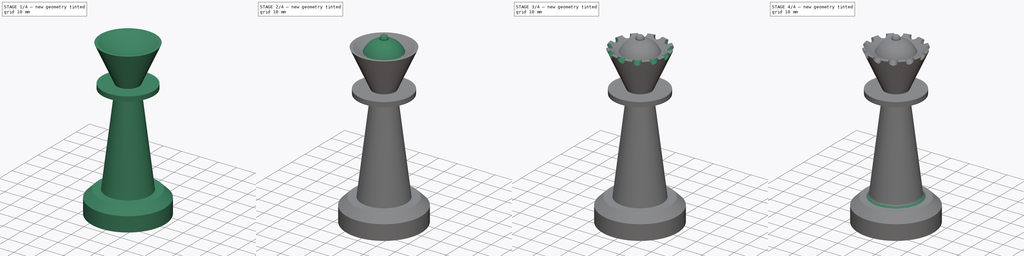
[diagram: build sequence overview — one tinted view per stage of 4, left to right]
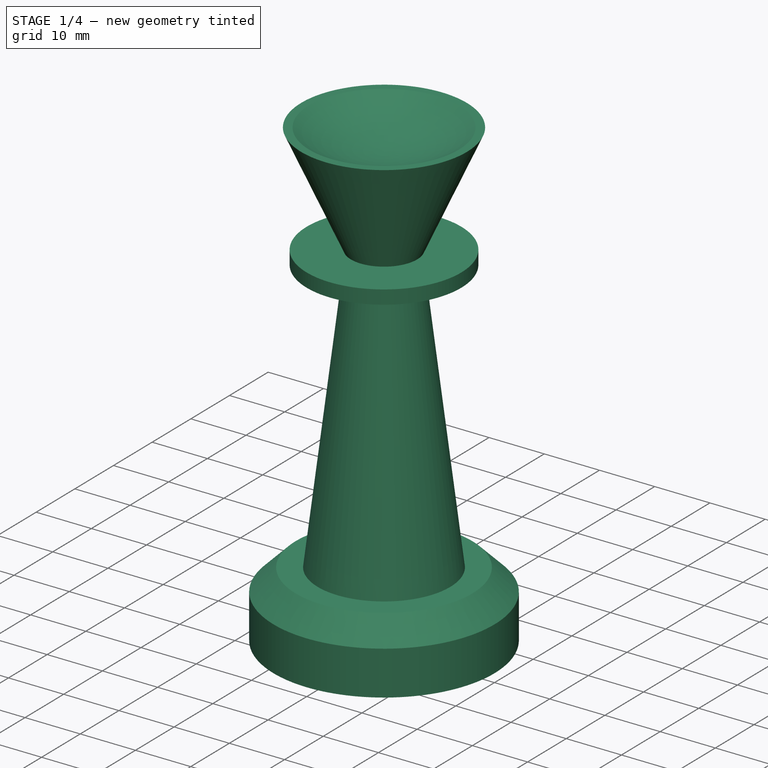
[diagram: stage 1 of 4 — iso view after this stage's code; geometry added in this stage tinted green]
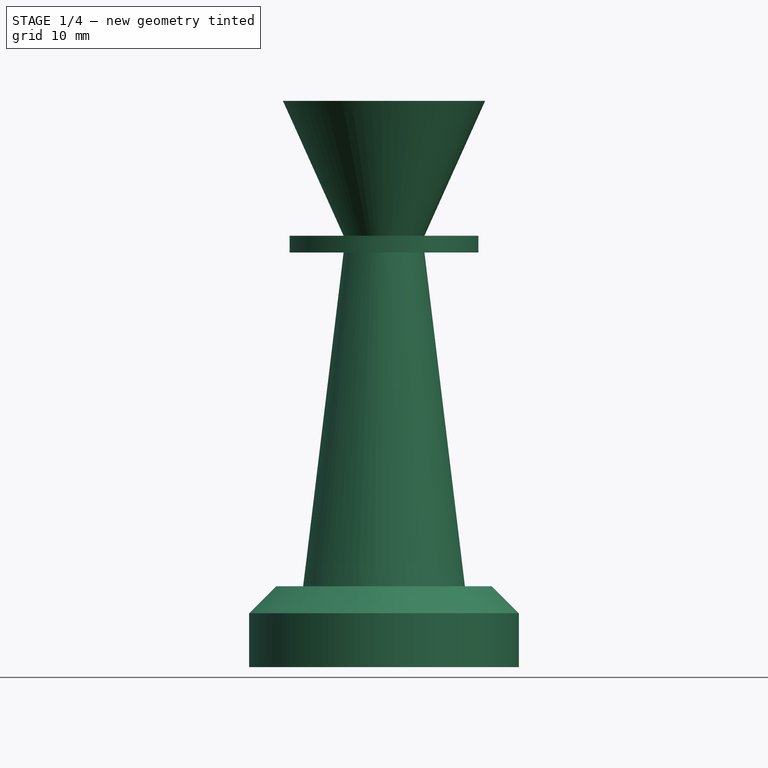
[diagram: stage 1 of 4 — front view after this stage's code; geometry added in this stage tinted green]
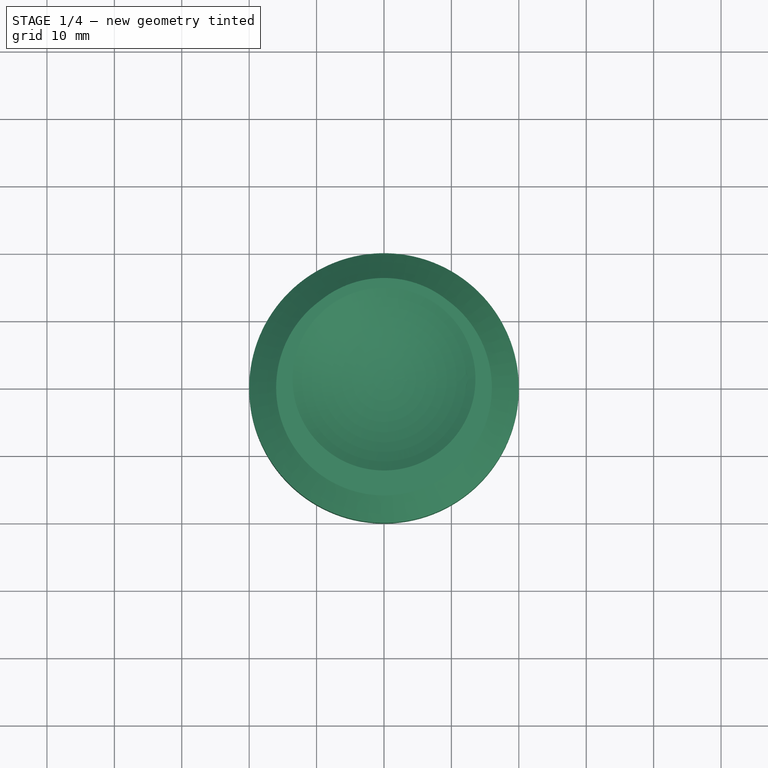
[diagram: stage 1 of 4 — top view after this stage's code; geometry added in this stage tinted green]
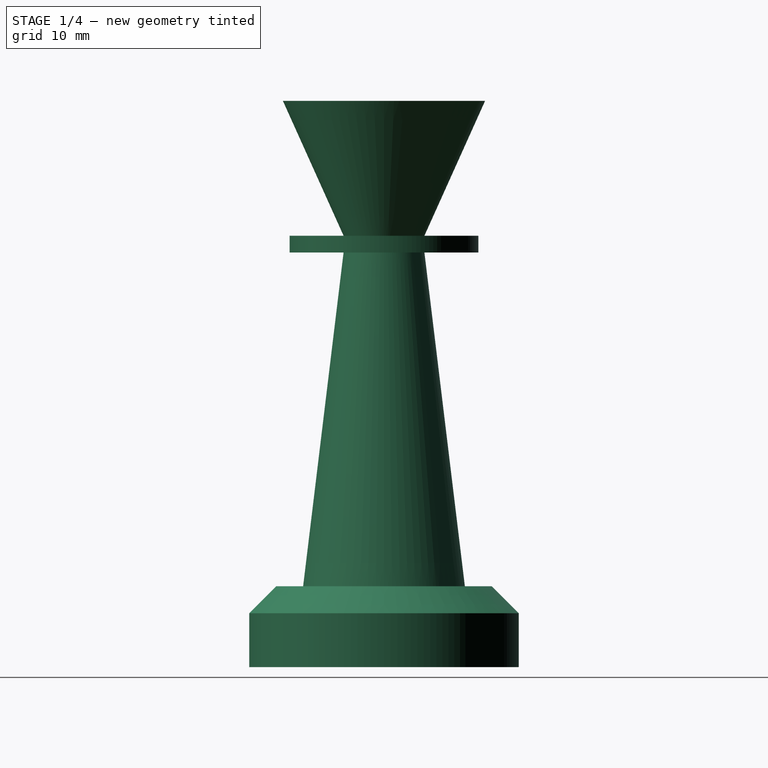
[diagram: stage 1 of 4 — right view after this stage's code; geometry added in this stage tinted green]
FCSTD DOCUMENT  (FreeCAD 0.21R33668 +26 (Git))
Label: queen_2
License: All rights reserved
LicenseURL: http://en.wikipedia.org/wiki/All_rights_reserved
objects: PartDesign::Fillet×3, Sketcher::SketchObject×2, PartDesign::AdditiveSphere×2, PartDesign::Revolution×1, PartDesign::SubtractiveSphere×1, PartDesign::SubtractiveCylinder×1, PartDesign::PolarPattern×1, PartDesign::Body×1
note: 20 computed .brp shape members not serialized (recipe doc carries the construction recipe); baked Part::Feature solids carry a one-line shape summary decoded from their .brp

FEATURE [Sketcher::SketchObject] Sketch001  label="queen"
  FullyConstrained = true
  MapMode = 5
  Placement = pos=(0,0,0) rot=(1,0,0;1.5708rad)
  Support = -> [XZ_Plane001]
  sketch-geometry (11):
    g0: LineSegment StartX=0 StartY=0 StartZ=0 EndX=20 EndY=0 EndZ=0
    g1: LineSegment StartX=20 StartY=0 StartZ=0 EndX=20 EndY=8 EndZ=0
    g2: LineSegment StartX=20 StartY=8 StartZ=0 EndX=16 EndY=12 EndZ=0
    g3: LineSegment StartX=16 StartY=12 StartZ=0 EndX=12 EndY=12 EndZ=0
    g4: LineSegment StartX=12 StartY=12 StartZ=0 EndX=6 EndY=61.5 EndZ=0
    g5: LineSegment StartX=6 StartY=61.5 StartZ=0 EndX=14 EndY=61.5 EndZ=0
    g6: LineSegment StartX=14 StartY=61.5 StartZ=0 EndX=14 EndY=64 EndZ=0
    g7: LineSegment StartX=14 StartY=64 StartZ=0 EndX=6 EndY=64 EndZ=0
    g8: LineSegment StartX=6 StartY=64 StartZ=0 EndX=15 EndY=84 EndZ=0
    g9: LineSegment StartX=15 StartY=84 StartZ=0 EndX=0 EndY=84 EndZ=0
    g10: LineSegment StartX=0 StartY=84 StartZ=0 EndX=0 EndY=0 EndZ=0
  constraints (32):
    c: Coincident(g-1,g0)
    c: Horizontal(g0)
    c: Coincident(g0,g1)
    c: Vertical(g1)
    c: Coincident(g1,g2)
    c: Coincident(g2,g3)
    c: Horizontal(g3)
    c: Coincident(g3,g4)
    c: Coincident(g4,g5)
    c: Horizontal(g5)
    c: Coincident(g5,g6)
    c: Vertical(g6)
    c: Coincident(g6,g7)
    c: Horizontal(g7)
    c: Coincident(g7,g8)
    c: Coincident(g8,g9)
    c: PointOnObject(g9,g-2)
    c: Horizontal(g9)
    c: Coincident(g9,g10)
    c: Coincident(g10,g0)
    c: DistanceX(g0,g0) = 20
    c: DistanceY(g1,g1) = 8
    c: DistanceX(g2) = 16
    c: DistanceX(g3) = 12
    c: DistanceX(g4) = 6
    c: DistanceX(g7) = 6
    c: DistanceX(g5,g5) = 8
    c: DistanceY(g6,g6) = 2.5
    c: DistanceY(g8,g8) = 20
    c: DistanceX(g9,g9) = 15
    c: DistanceY(g10,g10) = 84
    c: DistanceY(g3) = 12
FEATURE [PartDesign::Revolution] Revolution
  Angle = 360
  Axis = (0,2e-16,1)
  Base = (0,0,0)
  Placement = pos=(0,0,0) rot=(1,0,0;1.5708rad)
  Profile = -> Sketch001
  ReferenceAxis = -> Sketch001 [V_Axis]
  Reversed = true
FEATURE [Sketcher::SketchObject] Sketch
  FullyConstrained = true
  MapMode = 5
  Placement = pos=(0,0,0) rot=(1,0,0;1.5708rad)
  Support = -> [XZ_Plane001]
FEATURE [PartDesign::SubtractiveSphere] Sphere
  Angle1 = -90
  Angle2 = 90
  Angle3 = 360
  AttacherType = Attacher::AttachEngine3D
  AttachmentOffset = pos=(0,0,105) rot=(0,0,1;0rad)
  BaseFeature = -> Revolution
  MapMode = 2
  Placement = pos=(0,0,105) rot=(0,0,1;0rad)
  Radius = 25
  Support = -> [X_Axis]
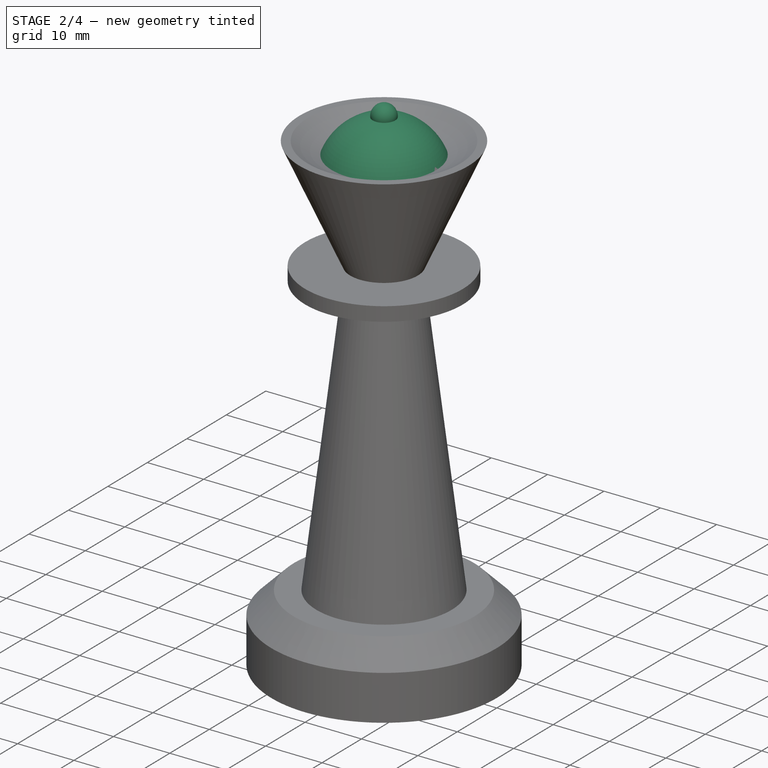
[diagram: stage 2 of 4 — iso view after this stage's code; geometry added in this stage tinted green]
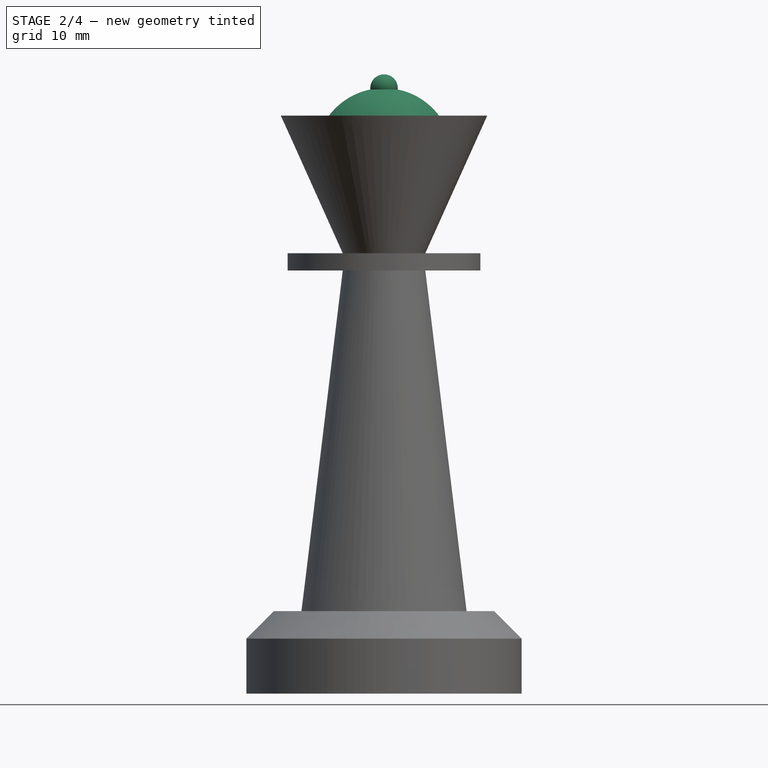
[diagram: stage 2 of 4 — front view after this stage's code; geometry added in this stage tinted green]
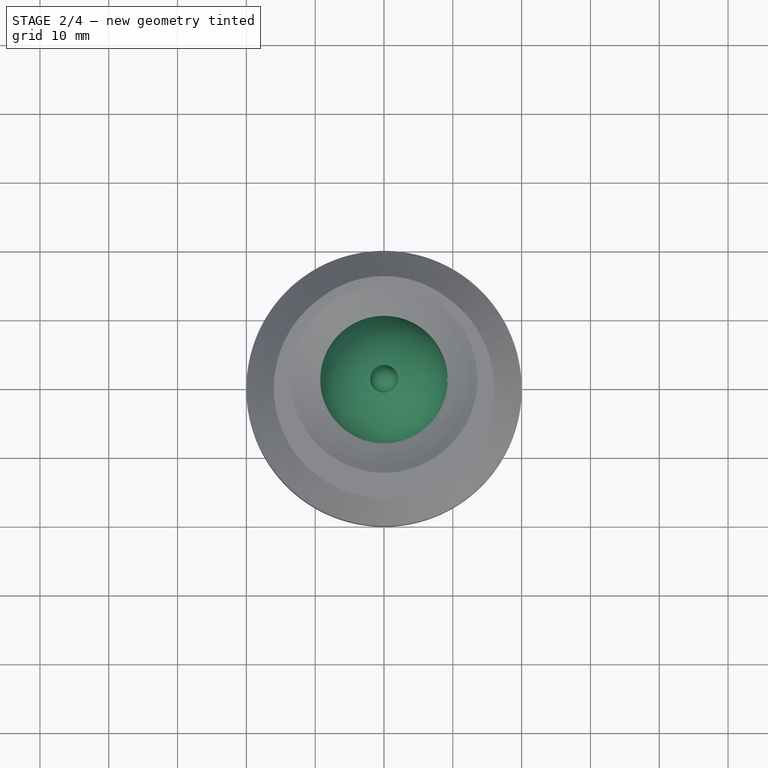
[diagram: stage 2 of 4 — top view after this stage's code; geometry added in this stage tinted green]
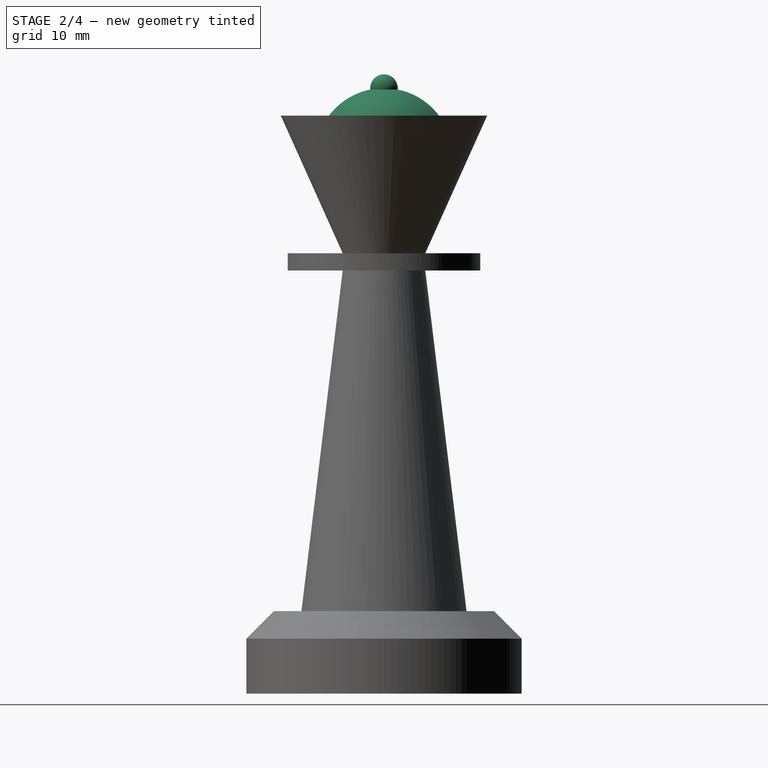
[diagram: stage 2 of 4 — right view after this stage's code; geometry added in this stage tinted green]
FEATURE [PartDesign::AdditiveSphere] Sphere001
  Angle1 = -90
  Angle2 = 90
  Angle3 = 360
  AttacherType = Attacher::AttachEngine3D
  AttachmentOffset = pos=(0,0,78) rot=(0,0,1;0rad)
  BaseFeature = -> Sphere
  MapMode = 5
  Placement = pos=(0,0,78) rot=(0,0,1;0rad)
  Radius = 10
  Support = -> [XY_Plane]
FEATURE [PartDesign::AdditiveSphere] Sphere002
  Angle1 = -90
  Angle2 = 90
  Angle3 = 360
  AttacherType = Attacher::AttachEngine3D
  AttachmentOffset = pos=(0,0,88) rot=(0,0,1;0rad)
  BaseFeature = -> Sphere001
  MapMode = 5
  Placement = pos=(0,0,88) rot=(0,0,1;0rad)
  Radius = 2
  Support = -> [XY_Plane]
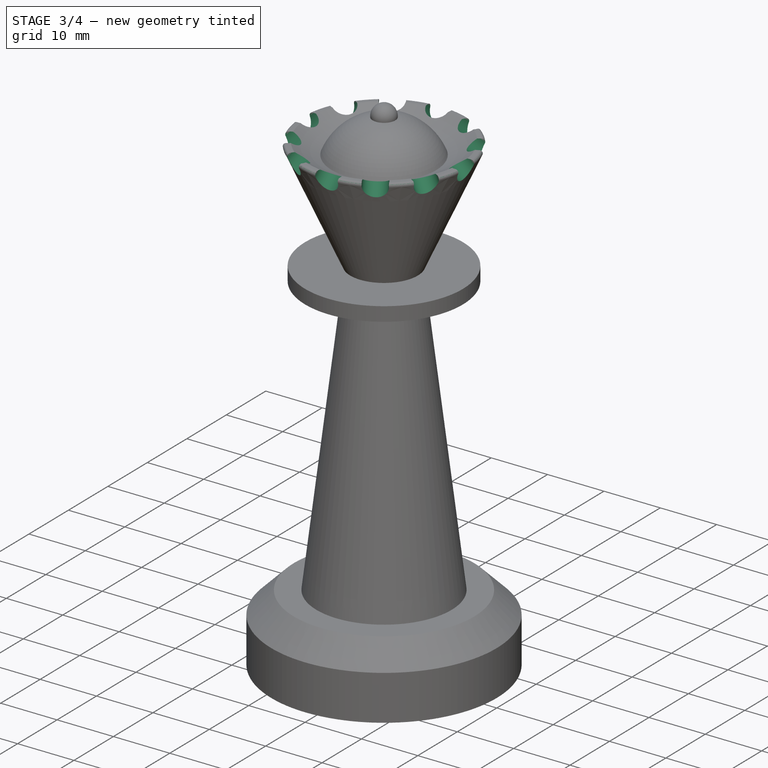
[diagram: stage 3 of 4 — iso view after this stage's code; geometry added in this stage tinted green]
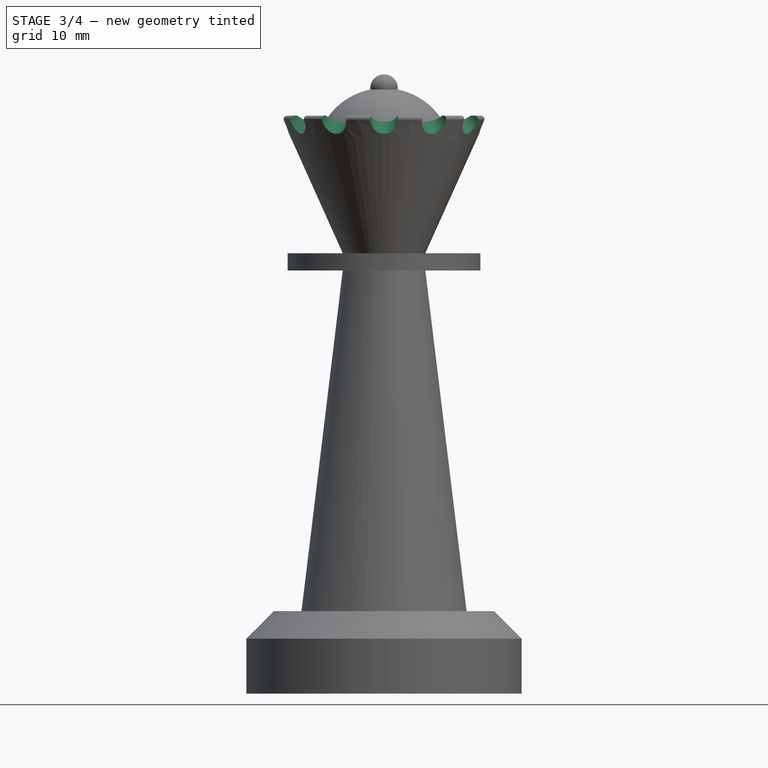
[diagram: stage 3 of 4 — front view after this stage's code; geometry added in this stage tinted green]
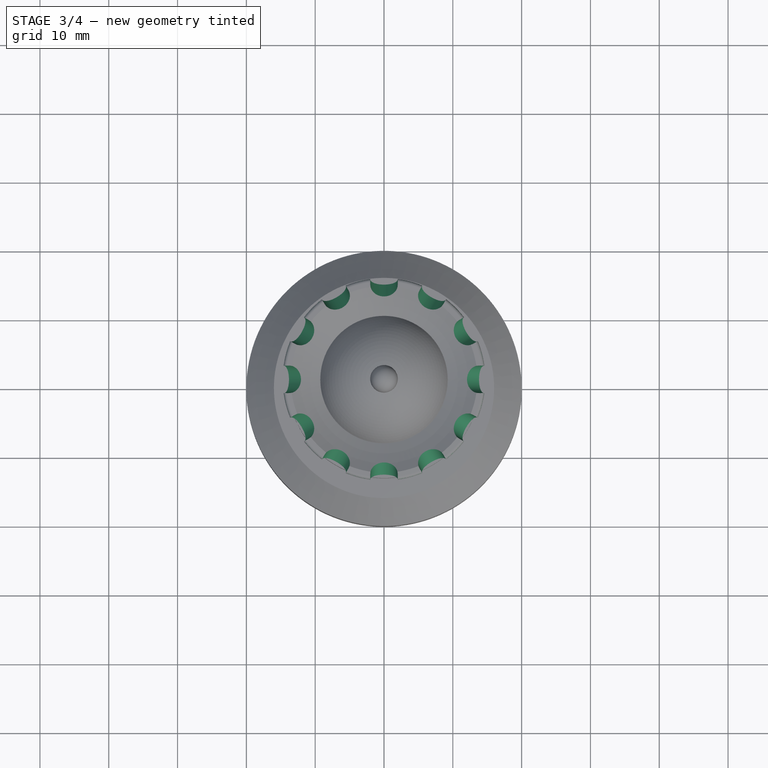
[diagram: stage 3 of 4 — top view after this stage's code; geometry added in this stage tinted green]
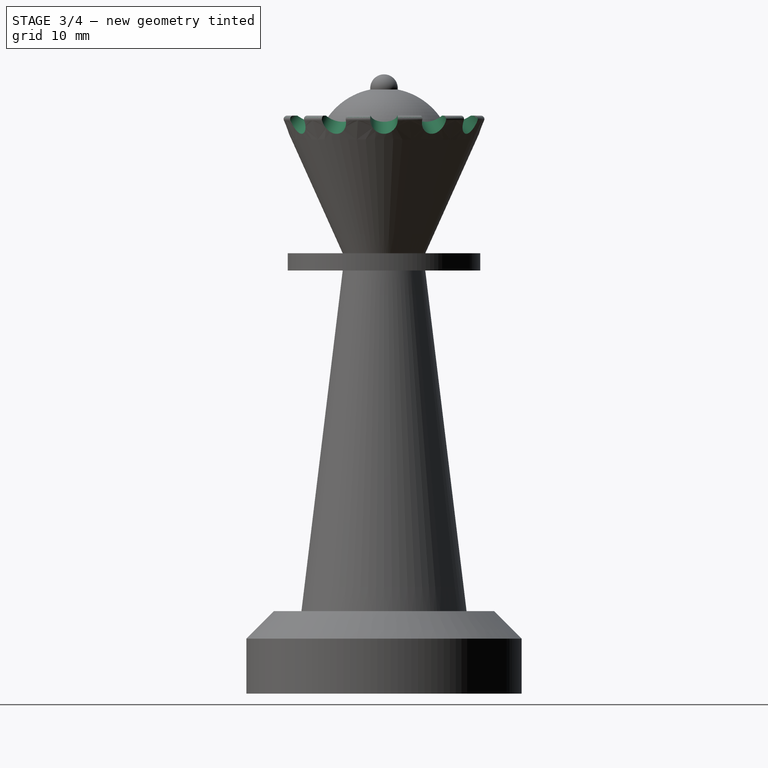
[diagram: stage 3 of 4 — right view after this stage's code; geometry added in this stage tinted green]
FEATURE [PartDesign::Fillet] Fillet
  Base = -> Sphere002 [Edge13]
  BaseFeature = -> Sphere002
  Placement = pos=(0,0,88) rot=(0,0,1;0rad)
  Radius = 0.5
  SupportTransform = false
  UseAllEdges = false
FEATURE [PartDesign::SubtractiveCylinder] Cylinder
  Angle = 360
  AttacherType = Attacher::AttachEngine3D
  AttachmentOffset = pos=(0,0,98) rot=(0,1,0;2.35619rad)
  BaseFeature = -> Fillet
  FirstAngle = 0
  Height = 25
  MapMode = 5
  Placement = pos=(0,0,98) rot=(0,1,0;2.35619rad)
  Radius = 2
  SecondAngle = 0
  Support = -> [XY_Plane]
FEATURE [PartDesign::PolarPattern] PolarPattern
  Angle = 360
  Axis = -> Z_Axis
  BaseFeature = -> Cylinder
  Occurrences = 12
  Originals = -> [Cylinder]
  Placement = pos=(0,0,98) rot=(0,1,0;2.35619rad)
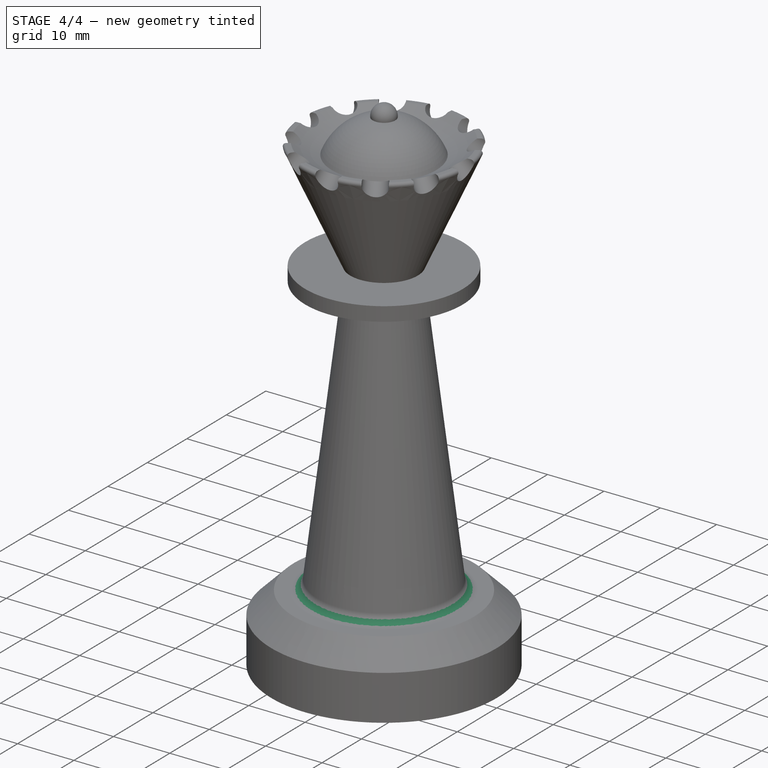
[diagram: stage 4 of 4 — iso view after this stage's code; geometry added in this stage tinted green]
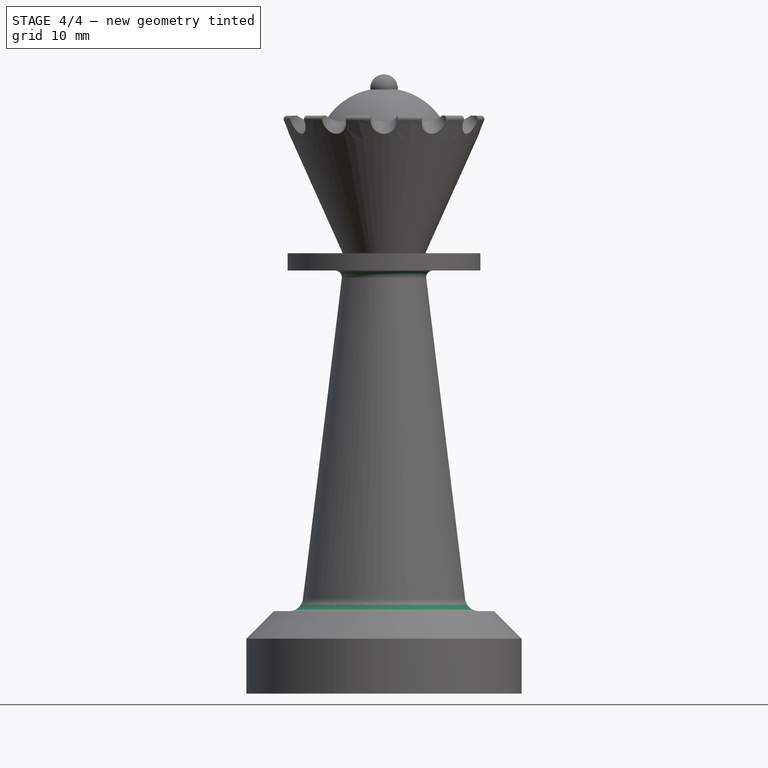
[diagram: stage 4 of 4 — front view after this stage's code; geometry added in this stage tinted green]
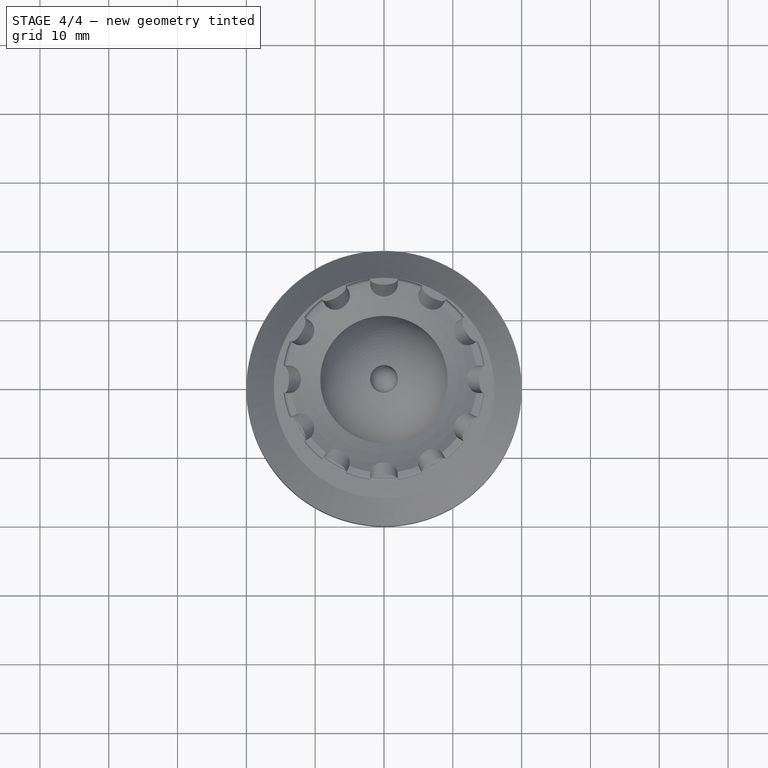
[diagram: stage 4 of 4 — top view after this stage's code; geometry added in this stage tinted green]
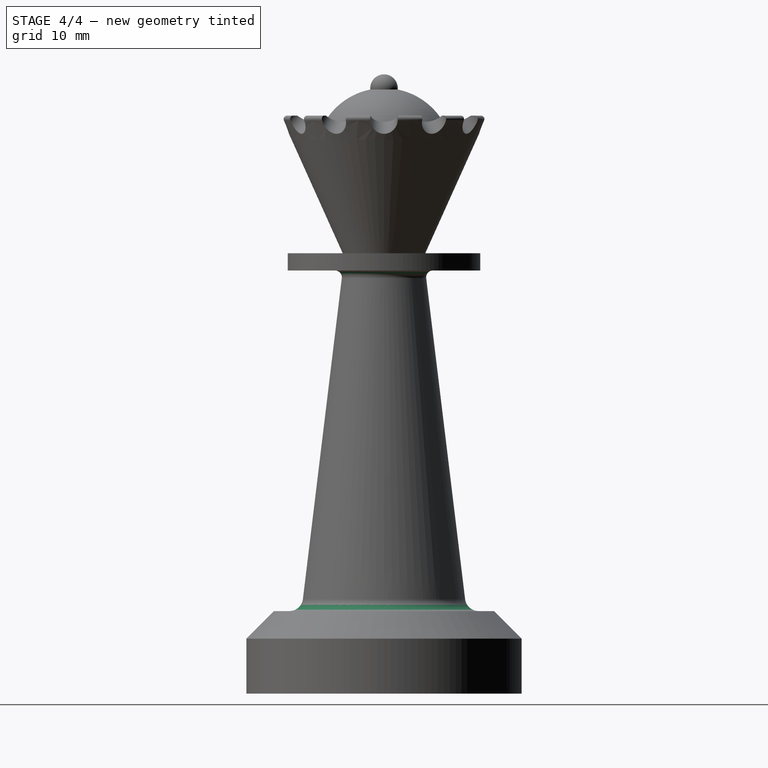
[diagram: stage 4 of 4 — right view after this stage's code; geometry added in this stage tinted green]
FEATURE [PartDesign::Fillet] Fillet001
  Base = -> PolarPattern [Edge154]
  BaseFeature = -> PolarPattern
  Placement = pos=(0,0,98) rot=(0,1,0;2.35619rad)
  Radius = 1
  SupportTransform = false
  UseAllEdges = false
FEATURE [PartDesign::Fillet] Fillet002
  Base = -> Fillet001 [Edge8]
  BaseFeature = -> Fillet001
  Placement = pos=(0,0,98) rot=(0,1,0;2.35619rad)
  Radius = 2
  SupportTransform = false
  UseAllEdges = false
FEATURE [PartDesign::Body] Body
  Group = -> [Sketch001,Revolution,Sketch,Sphere,Sphere001,Sphere002,Fillet,Cylinder,PolarPattern,Fillet001,Fillet002]
  Origin = -> Origin
  Tip = -> Fillet002
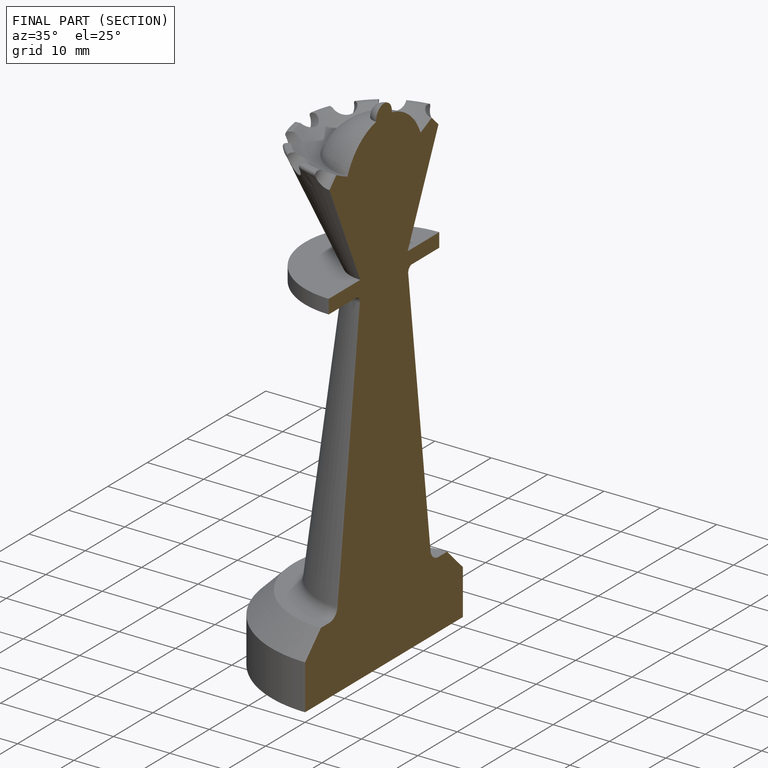
[diagram: finished part — half-section view (interior)]
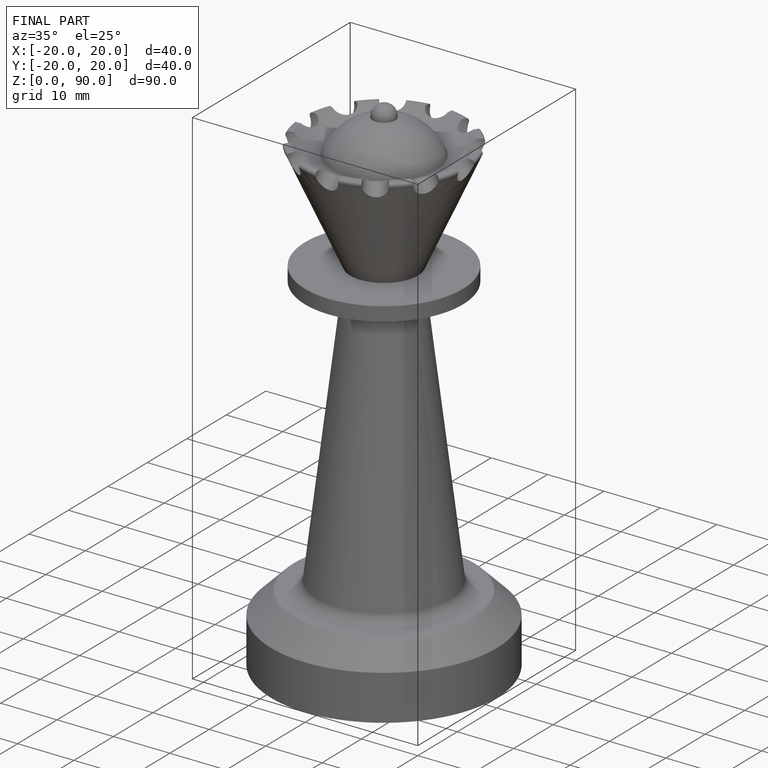
[diagram: finished part — iso view with bounding-box wireframe]
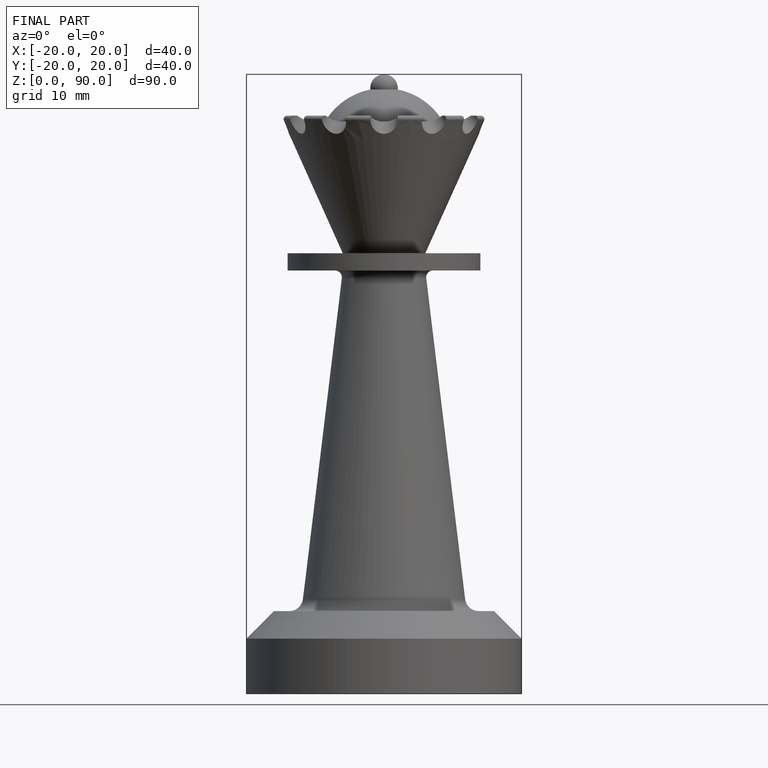
[diagram: finished part — front view with bounding-box wireframe]
